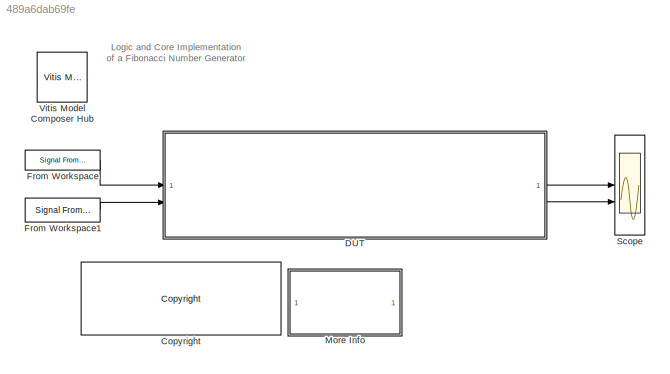
MODEL slx_489a6dab69fe
KIND model
CONFIG AbsTol = auto
CONFIG EnableMultiTasking = on
CONFIG FixedStep = auto
CONFIG MaxStep = 1
CONFIG MinStep = auto
CONFIG RelTol = 1e-3
CONFIG SampleTimeConstraint = Unconstrained
CONFIG SolverName = VariableStepDiscrete
CONFIG StartTime = 0.0
CONFIG StopTime = 34
BLOCK [Reference] <copyright redacted>
  SourceBlock = hdlUtilities/<copyright redacted>
  SourceType = Xilinx <copyright redacted>
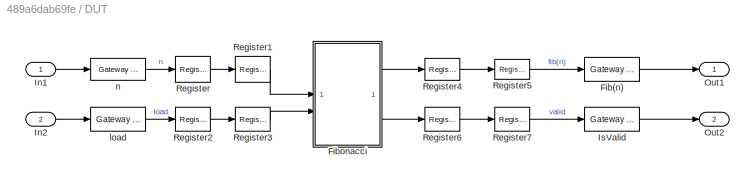
BLOCK [SubSystem] DUT
BLOCK [Reference] DUT/Fib(n)  REF=hdlBasic/Gateway Out
  SourceBlock = hdlBasic/Gateway Out
  SourceType = Gateway Out Block
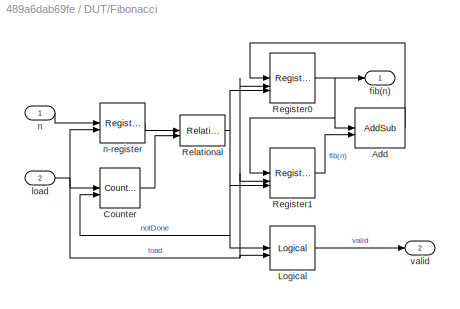
BLOCK [SubSystem] DUT/Fibonacci
BLOCK [Reference] DUT/Fibonacci/Add  REF=hdlBasic/AddSub
  SourceBlock = hdlBasic/AddSub
  SourceType = Adder/Subtracter Block
BLOCK [Reference] DUT/Fibonacci/Counter  REF=hdlBasic/Counter
  SourceBlock = hdlBasic/Counter
  SourceType = Counter Block
BLOCK [Reference] DUT/Fibonacci/Logical  REF=hdlBasic/Logical
  SourceBlock = hdlBasic/Logical
  SourceType = Logical Block Block
BLOCK [Reference] DUT/Fibonacci/Register0  REF=hdlBasic/Register
  SourceBlock = hdlBasic/Register
  SourceType = Register Block
BLOCK [Reference] DUT/Fibonacci/Register1  REF=hdlBasic/Register
  SourceBlock = hdlBasic/Register
  SourceType = Register Block
BLOCK [Reference] DUT/Fibonacci/Relational  REF=hdlBasic/Relational
  SourceBlock = hdlBasic/Relational
  SourceType = Arithmetic Relational Operator Block
BLOCK [Outport] DUT/Fibonacci/fib(n)
  VectorParamsAs1DForOutWhenUnconnected = off
BLOCK [Inport] DUT/Fibonacci/load
  Port = 2
BLOCK [Inport] DUT/Fibonacci/n
BLOCK [Reference] DUT/Fibonacci/n-register  REF=hdlBasic/Register
  SourceBlock = hdlBasic/Register
  SourceType = Register Block
BLOCK [Outport] DUT/Fibonacci/valid
  Port = 2
  VectorParamsAs1DForOutWhenUnconnected = off
BLOCK [Inport] DUT/In1
BLOCK [Inport] DUT/In2
  Port = 2
BLOCK [Reference] DUT/IsValid   REF=hdlBasic/Gateway Out
  SourceBlock = hdlBasic/Gateway Out
  SourceType = Gateway Out Block
BLOCK [Outport] DUT/Out1
BLOCK [Outport] DUT/Out2
  Port = 2
BLOCK [Reference] DUT/Register  REF=hdlBasic/Register
  SourceBlock = hdlBasic/Register
  SourceType = Register Block
BLOCK [Reference] DUT/Register1  REF=hdlBasic/Register
  SourceBlock = hdlBasic/Register
  SourceType = Register Block
BLOCK [Reference] DUT/Register2  REF=hdlBasic/Register
  SourceBlock = hdlBasic/Register
  SourceType = Register Block
BLOCK [Reference] DUT/Register3  REF=hdlBasic/Register
  SourceBlock = hdlBasic/Register
  SourceType = Register Block
BLOCK [Reference] DUT/Register4  REF=hdlBasic/Register
  SourceBlock = hdlBasic/Register
  SourceType = Register Block
BLOCK [Reference] DUT/Register5  REF=hdlBasic/Register
  SourceBlock = hdlBasic/Register
  SourceType = Register Block
BLOCK [Reference] DUT/Register6  REF=hdlBasic/Register
  SourceBlock = hdlBasic/Register
  SourceType = Register Block
BLOCK [Reference] DUT/Register7  REF=hdlBasic/Register
  SourceBlock = hdlBasic/Register
  SourceType = Register Block
BLOCK [Reference] DUT/load  REF=hdlBasic/Gateway In
  SourceBlock = hdlBasic/Gateway In
  SourceType = Gateway In Block
BLOCK [Reference] DUT/n  REF=hdlBasic/Gateway In
  SourceBlock = hdlBasic/Gateway In
  SourceType = Gateway In Block
BLOCK [Reference] From Workspace  REF=dspsrcs4/Signal From
Workspace
  SourceBlock = dspsrcs4/Signal From\nWorkspace
  SourceType = Signal From Workspace
BLOCK [Reference] From Workspace1  REF=dspsrcs4/Signal From
Workspace
  SourceBlock = dspsrcs4/Signal From\nWorkspace
  SourceType = Signal From Workspace
BLOCK [SubSystem] More Info
BLOCK [Scope] Scope
  Floating = off
  NumInputPorts = 2
  ScopeSpecificationString = Simulink.scopes.TimeScopeBlockCfg('CurrentConfiguration', extmgr.ConfigurationSet(extmgr.Configuration('Core','General UI',true),extmgr.Configuration('Sources','WiredSimulink',true,'DataLoggingLimitDataPoints',true,'DataLoggingDecimateData',true,'DataLoggingDecimation','1','DataLoggingSaveFormat','Structure With Time'),extmgr.Configuration('Visuals','Time Domain',true,'SerializedDisplays',{struct(...<+2267ch>
BLOCK [Reference] Vitis Model Composer Hub  REF=vmcUtilities/Vitis Model Composer Hub
  SourceBlock = vmcUtilities/Vitis Model Composer Hub
  SourceType = VMC Hub
  Tag = genX
  UserDataPersistent = on
ANNOTATION (root): Logic and Core Implementation of a Fibonacci Number Generator
ANNOTATION More Info: Logic-Based Fibonacci Sequence
ANNOTATION More Info: This design is a logic and cores implementation of a Fibonacci number generator. That is, given a non-negative integer n, it computes the recursively defined sequence x_0 = 1, x_1 = 1, ... , x_n = x_{n-2} + x_{n-1}. This design should be compared to sysgenFIBONACCI_synth which implements the same computation in a more software-centric way. The two designs are functionally equivalent, and use the s...<+29ch>
LINE DUT/Fib(n):1 -> DUT/Out1:1
LINE DUT/Fibonacci/Add:1 -> DUT/Fibonacci/Register0:1
LINE DUT/Fibonacci/Counter:1 -> DUT/Fibonacci/Relational:2
LINE DUT/Fibonacci/Logical:1 -> DUT/Fibonacci/valid:1
NET DUT/Fibonacci/Register0:1 -> DUT/Fibonacci/Add:1, DUT/Fibonacci/Register1:1, DUT/Fibonacci/fib(n):1
LINE DUT/Fibonacci/Register1:1 -> DUT/Fibonacci/Add:2
NET DUT/Fibonacci/Relational:1 -> DUT/Fibonacci/Counter:2, DUT/Fibonacci/Logical:1, DUT/Fibonacci/Register0:3, DUT/Fibonacci/Register1:3
NET DUT/Fibonacci/load:1 -> DUT/Fibonacci/Counter:1, DUT/Fibonacci/Logical:2, DUT/Fibonacci/Register0:2, DUT/Fibonacci/Register1:2, DUT/Fibonacci/n-register:2
LINE DUT/Fibonacci/n-register:1 -> DUT/Fibonacci/Relational:1
LINE DUT/Fibonacci/n:1 -> DUT/Fibonacci/n-register:1
LINE DUT/Fibonacci:1 -> DUT/Register4:1
LINE DUT/Fibonacci:2 -> DUT/Register6:1
LINE DUT/In1:1 -> DUT/n:1
LINE DUT/In2:1 -> DUT/load:1
LINE DUT/IsValid :1 -> DUT/Out2:1
LINE DUT/Register1:1 -> DUT/Fibonacci:1
LINE DUT/Register2:1 -> DUT/Register3:1
LINE DUT/Register3:1 -> DUT/Fibonacci:2
LINE DUT/Register4:1 -> DUT/Register5:1
LINE DUT/Register5:1 -> DUT/Fib(n):1
LINE DUT/Register6:1 -> DUT/Register7:1
LINE DUT/Register7:1 -> DUT/IsValid :1
LINE DUT/Register:1 -> DUT/Register1:1
LINE DUT/load:1 -> DUT/Register2:1
LINE DUT/n:1 -> DUT/Register:1
LINE DUT:1 -> Scope:1
LINE DUT:2 -> Scope:2
LINE From Workspace1:1 -> DUT:2
LINE From Workspace:1 -> DUT:1
note: NET lines group one-source signal fan-out (src -> all destinations, sorted); 1:1 wires keep LINE
